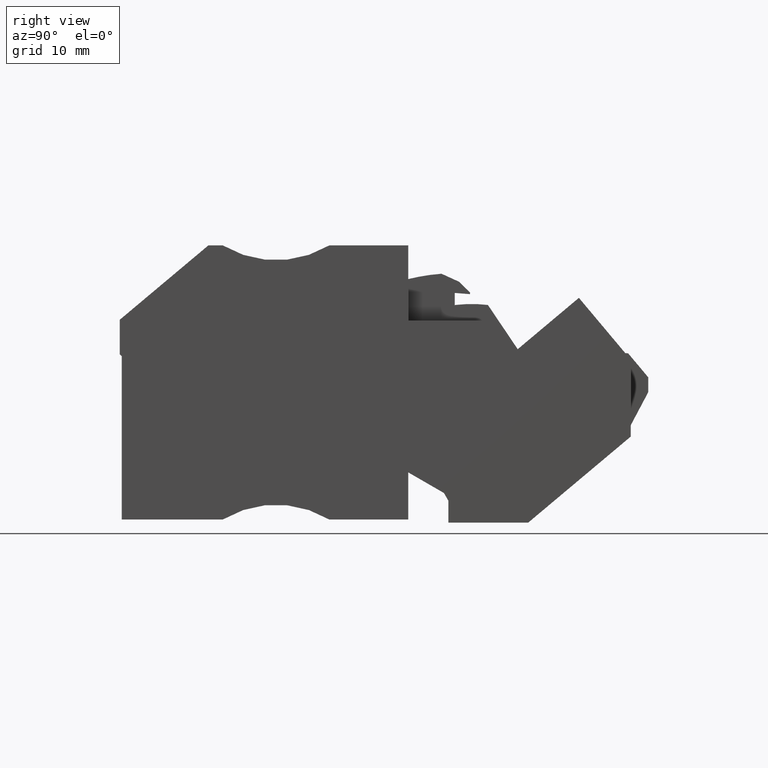
[diagram: clean part render]
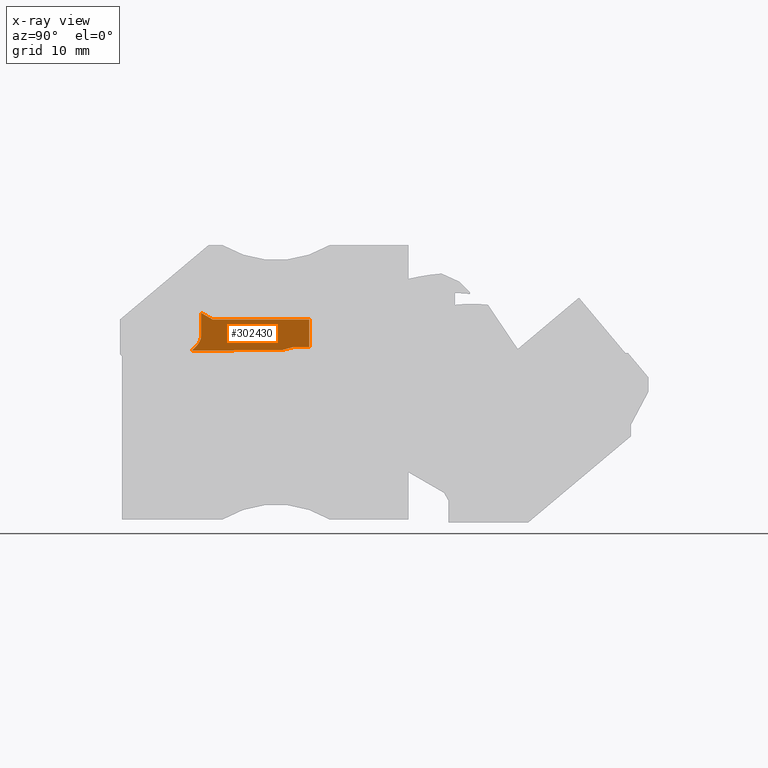
[diagram: x-ray — body ghosted, one internal face saturated and labeled with its STEP entity id]
A machine part, right view, then the same camera in x-ray: the body is ghosted and one INTERNAL B-rep face — a face not visible from any outside direction — is saturated and labeled: STEP entity #302430.
In plain terms, the highlighted planar face has unit normal (-1, 0, 0).
Its self-contained STEP definition (entity closure, byte-faithful):
#104160=CARTESIAN_POINT('',(423.016914991146,683.886335208509,
84.6699999829062));
#104170=DIRECTION('',(0.965925826756713,0.258819043357248,
-3.79102048216828E-11));
#104180=VECTOR('',#104170,1.);
#104190=LINE('',#104160,#104180);
#104200=CARTESIAN_POINT('',(436.068013272554,687.383366428071,
84.6699999823968));
#104210=VERTEX_POINT('',#104200);
#104220=CARTESIAN_POINT('',(437.004730016151,687.634358921055,
84.6699999823573));
#104230=VERTEX_POINT('',#104220);
#104240=EDGE_CURVE('',#104210,#104230,#104190,.T.);
#122580=CARTESIAN_POINT('',(428.516102331043,688.734358735133,
86.3199999829747));
#122590=DIRECTION('',(-1.,1.98497844528636E-9,-5.37042767448157E-11));
#122600=DIRECTION('',(-1.98495192504897E-9,-1.,4.42871223279918E-10));
#122610=AXIS2_PLACEMENT_3D('',#122580,#122590,#122600);
#122620=CONICAL_SURFACE('',#122610,1.4398990952349,0.5235987755983);
#130690=CARTESIAN_POINT('',(438.648616184603,676.714061019204,
84.6699999862829));
#130700=DIRECTION('',(5.59150170609455E-10,-1.,3.51221513140156E-10));
#130710=VECTOR('',#130700,1.);
#130720=LINE('',#130690,#130710);
#130730=CARTESIAN_POINT('',(438.648616176987,690.334347585901,
84.6699999814992));
#130740=VERTEX_POINT('',#130730);
#130750=CARTESIAN_POINT('',(438.648616178497,687.634358918162,
84.6699999824445));
#130760=VERTEX_POINT('',#130750);
#130770=EDGE_CURVE('',#130740,#130760,#130720,.T.);
#143900=CARTESIAN_POINT('',(416.568902626307,690.334347591075,
84.6699999802878));
#143910=DIRECTION('',(1.,-2.34350927552617E-10,5.48619602860575E-11));
#143920=VECTOR('',#143910,1.);
#143930=LINE('',#143900,#143920);
#143940=CARTESIAN_POINT('',(429.278049221869,690.334347588097,
84.6699999809851));
#143950=VERTEX_POINT('',#143940);
#143960=EDGE_CURVE('',#143950,#130740,#143930,.T.);
#275280=CARTESIAN_POINT('',(449.568914094368,687.634358898947,
84.6699999830466));
#275290=DIRECTION('',(1.,-1.75962394655114E-9,5.48619612102419E-11));
#275300=VECTOR('',#275290,1.);
#275310=LINE('',#275280,#275300);
#275320=EDGE_CURVE('',#104230,#130760,#275310,.T.);
#301420=CARTESIAN_POINT('',(439.003158794564,695.383861714499,
84.6699999797451));
#301430=DIRECTION('',(5.48619395602313E-11,-3.51221505597609E-10,-1.));
#301440=DIRECTION('',(-1.32734873092824E-9,-1.,3.51221505524789E-10));
#301450=AXIS2_PLACEMENT_3D('',#301420,#301430,#301440);
#301460=PLANE('',#301450);
#301470=ORIENTED_EDGE('',*,*,#130770,.F.);
#301480=ORIENTED_EDGE('',*,*,#275320,.T.);
#301490=ORIENTED_EDGE('',*,*,#104240,.T.);
#301500=CARTESIAN_POINT('',(419.663047713779,687.240202495097,
84.6699999815443));
#301510=DIRECTION('',(0.999961923081495,0.00872653351327912,
5.17949545808724E-11));
#301520=VECTOR('',#301510,1.);
#301530=LINE('',#301500,#301520);
#301540=CARTESIAN_POINT('',(427.230390921099,687.306241683771,
84.6699999819363));
#301550=VERTEX_POINT('',#301540);
#301560=EDGE_CURVE('',#301550,#104210,#301530,.T.);
#301570=ORIENTED_EDGE('',*,*,#301560,.T.);
#301580=CARTESIAN_POINT('',(427.230390921223,687.306241683898,
84.6699999819365));
#301590=CARTESIAN_POINT('',(427.269687427298,687.34090938432,
84.6699999819265));
#301600=CARTESIAN_POINT('',(427.308660575153,687.376011359042,
84.669999981916));
#301610=CARTESIAN_POINT('',(427.347205621983,687.411589676223,
84.6699999819056));
#301620=CARTESIAN_POINT('',(427.385750737358,687.447168056674,
84.6699999818953));
#301630=CARTESIAN_POINT('',(427.423868616499,687.483222890919,
84.6699999818847));
#301640=CARTESIAN_POINT('',(427.461441353598,687.519816115706,
84.6699999818739));
#301650=CARTESIAN_POINT('',(427.499014085738,687.556409335662,
84.6699999818631));
#301660=CARTESIAN_POINT('',(427.536043212389,687.593541417054,
84.6699999818521));
#301670=CARTESIAN_POINT('',(427.572389378941,687.631299091695,
84.6699999818408));
#301680=CARTESIAN_POINT('',(427.590562532455,687.650178001981,
84.6699999818352));
#301690=CARTESIAN_POINT('',(427.608564700066,687.669213885159,
84.6699999818295));
#301700=CARTESIAN_POINT('',(427.626375481132,687.688420381307,
84.6699999818237));
#301710=CARTESIAN_POINT('',(427.644186247659,687.707626861776,
84.669999981818));
#301720=CARTESIAN_POINT('',(427.661805729214,687.727004008141,
84.6699999818252));
#301730=CARTESIAN_POINT('',(427.679210680864,687.746567394765,
84.6699999818193));
#301740=B_SPLINE_CURVE_WITH_KNOTS('',3,(#301580,#301590,#301600,#301610,
#301620,#301630,#301640,#301650,#301660,#301670,#301680,#301690,#301700,
#301710,#301720,#301730),.UNSPECIFIED.,.F.,.F.,(4,3,3,3,3,4),(0.,
0.157305173026817,0.314671771744464,0.471961512916391,0.550558712877485,
0.62912621570121),.UNSPECIFIED.);
#301750=SURFACE_CURVE('',#301740,(#122620,#301460),.CURVE_3D.);
#301760=CARTESIAN_POINT('',(427.679210681164,687.746567395169,
84.6699999818062));
#301770=VERTEX_POINT('',#301760);
#301780=EDGE_CURVE('',#301550,#301770,#301750,.T.);
#301790=ORIENTED_EDGE('',*,*,#301780,.F.);
#301800=CARTESIAN_POINT('',(428.152196886817,688.734358735119,
84.6699999814852));
#301810=CARTESIAN_POINT('',(428.152196886767,688.71114176503,
84.6699999814934));
#301820=CARTESIAN_POINT('',(428.151347710352,688.687915861699,
84.6699999815015));
#301830=CARTESIAN_POINT('',(428.149649965734,688.66468306952,
84.6699999815096));
#301840=CARTESIAN_POINT('',(428.147952567501,688.641455017441,
84.6699999815177));
#301850=CARTESIAN_POINT('',(428.14540695124,688.618241432146,
84.6699999815259));
#301860=CARTESIAN_POINT('',(428.142037669133,688.595109634627,
84.6699999815338));
#301870=CARTESIAN_POINT('',(428.138668418618,688.571978054,
84.6699999815418));
#301880=CARTESIAN_POINT('',(428.13447592362,688.548930721069,
84.6699999815507));
#301890=CARTESIAN_POINT('',(428.129508912972,688.526036925603,
84.6699999815585));
#301900=CARTESIAN_POINT('',(428.12454190921,688.503143161877,
84.6699999815663));
#301910=CARTESIAN_POINT('',(428.118801074785,688.480404882594,
84.6699999815747));
#301920=CARTESIAN_POINT('',(428.112355610436,688.457886431949,
84.6699999815823));
#301930=CARTESIAN_POINT('',(428.105910116544,688.435367878093,
84.6699999815899));
#301940=CARTESIAN_POINT('',(428.098760734364,688.413070475355,
84.6699999815958));
#301950=CARTESIAN_POINT('',(428.090991235594,688.39104963742,
84.6699999816031));
#301960=CARTESIAN_POINT('',(428.083221555879,688.369028286638,
84.6699999816104));
#301970=CARTESIAN_POINT('',(428.074832942172,688.347285604638,
84.669999981617));
#301980=CARTESIAN_POINT('',(428.065915773341,688.325862621752,
84.669999981624));
#301990=CARTESIAN_POINT('',(428.056995444876,688.304432048029,
84.669999981631));
#302000=CARTESIAN_POINT('',(428.04751292646,688.283239181667,
84.6699999816379));
#302010=CARTESIAN_POINT('',(428.037525103461,688.262275803418,
84.6699999816448));
#302020=CARTESIAN_POINT('',(428.027537240378,688.241312341036,
84.6699999816516));
#302030=CARTESIAN_POINT('',(428.017043974993,688.220578103932,
84.6699999816583));
#302040=CARTESIAN_POINT('',(428.006097951984,688.200064041371,
84.6699999816649));
#302050=CARTESIAN_POINT('',(427.995151901177,688.179549926713,
84.6699999816715));
#302060=CARTESIAN_POINT('',(427.983752971718,688.159255761642,
84.669999981678));
#302070=CARTESIAN_POINT('',(427.971949902577,688.139172811379,
84.6699999816844));
#302080=CARTESIAN_POINT('',(427.960146818217,688.119089835221,
84.6699999816908));
#302090=CARTESIAN_POINT('',(427.947939471827,688.099217896713,
84.6699999816971));
#302100=CARTESIAN_POINT('',(427.93537326702,688.079549371528,
84.6699999817033));
#302110=CARTESIAN_POINT('',(427.910241153946,688.040212785298,
84.6699999817158));
#302120=CARTESIAN_POINT('',(427.88367453467,688.001686323706,
84.6699999817278));
#302130=CARTESIAN_POINT('',(427.856007576727,687.963930850294,
84.6699999817396));
#302140=CARTESIAN_POINT('',(427.828340681538,687.926175462518,
84.6699999817513));
#302150=CARTESIAN_POINT('',(427.799571019165,687.889188971262,
84.6699999817627));
#302160=CARTESIAN_POINT('',(427.770005847583,687.852961140362,
84.6699999817738));
#302170=CARTESIAN_POINT('',(427.740440833558,687.816733502524,
84.6699999817849));
#302180=CARTESIAN_POINT('',(427.710078897562,687.781263662309,
84.6699999817958));
#302190=CARTESIAN_POINT('',(427.679210681164,687.746567395169,
84.6699999818062));
#302200=B_SPLINE_CURVE_WITH_KNOTS('',3,(#301800,#301810,#301820,#301830,
#301840,#301850,#301860,#301870,#301880,#301890,#301900,#301910,#301920,
#301930,#301940,#301950,#301960,#301970,#301980,#301990,#302000,#302010,
#302020,#302030,#302040,#302050,#302060,#302070,#302080,#302090,#302100,
#302110,#302120,#302130,#302140,#302150,#302160,#302170,#302180,#302190)
,.UNSPECIFIED.,.F.,.F.,(4,3,3,3,3,3,3,3,3,3,3,3,3,4),(0.,
0.0697376606873931,0.139741293086688,0.209955002738327,0.280243491824752
,0.350422486854652,0.420274949246358,0.489919273095834,0.559624427119296
,0.629442190659224,0.69939480988247,0.839656142116061,0.980066359932564,
1.1199461316398),.UNSPECIFIED.);
#302210=SURFACE_CURVE('',#302200,(#301460,#122620),.CURVE_3D.);
#302220=CARTESIAN_POINT('',(428.152196886776,688.734358735122,
84.6699999814853));
#302230=VERTEX_POINT('',#302220);
#302240=EDGE_CURVE('',#302230,#301770,#302210,.T.);
#302250=ORIENTED_EDGE('',*,*,#302240,.T.);
#302260=CARTESIAN_POINT('',(428.152196917056,702.907704932485,
84.6699999765072));
#302270=DIRECTION('',(2.13640555246622E-9,1.,-3.51221506101979E-10));
#302280=VECTOR('',#302270,1.);
#302290=LINE('',#302260,#302280);
#302300=CARTESIAN_POINT('',(428.152196891709,690.984358736059,
84.6699999807675));
#302310=VERTEX_POINT('',#302300);
#302320=EDGE_CURVE('',#302230,#302310,#302290,.T.);
#302330=ORIENTED_EDGE('',*,*,#302320,.F.);
#302340=CARTESIAN_POINT('',(443.85366629827,681.919111118561,
84.6699999847403));
#302350=DIRECTION('',(-0.866025403093094,0.500000001197445,
-2.23122558293731E-10));
#302360=VECTOR('',#302350,1.);
#302370=LINE('',#302340,#302360);
#302380=EDGE_CURVE('',#143950,#302310,#302370,.T.);
#302390=ORIENTED_EDGE('',*,*,#302380,.T.);
#302400=ORIENTED_EDGE('',*,*,#143960,.F.);
#302410=EDGE_LOOP('',(#302400,#302390,#302330,#302250,#301790,#301570,
#301490,#301480,#301470));
#302420=FACE_OUTER_BOUND('',#302410,.T.);
#302430=ADVANCED_FACE('',(#302420),#301460,.F.);